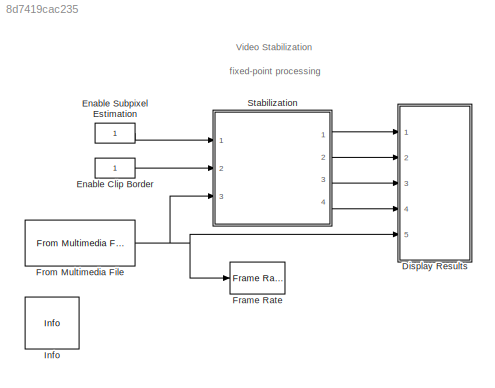
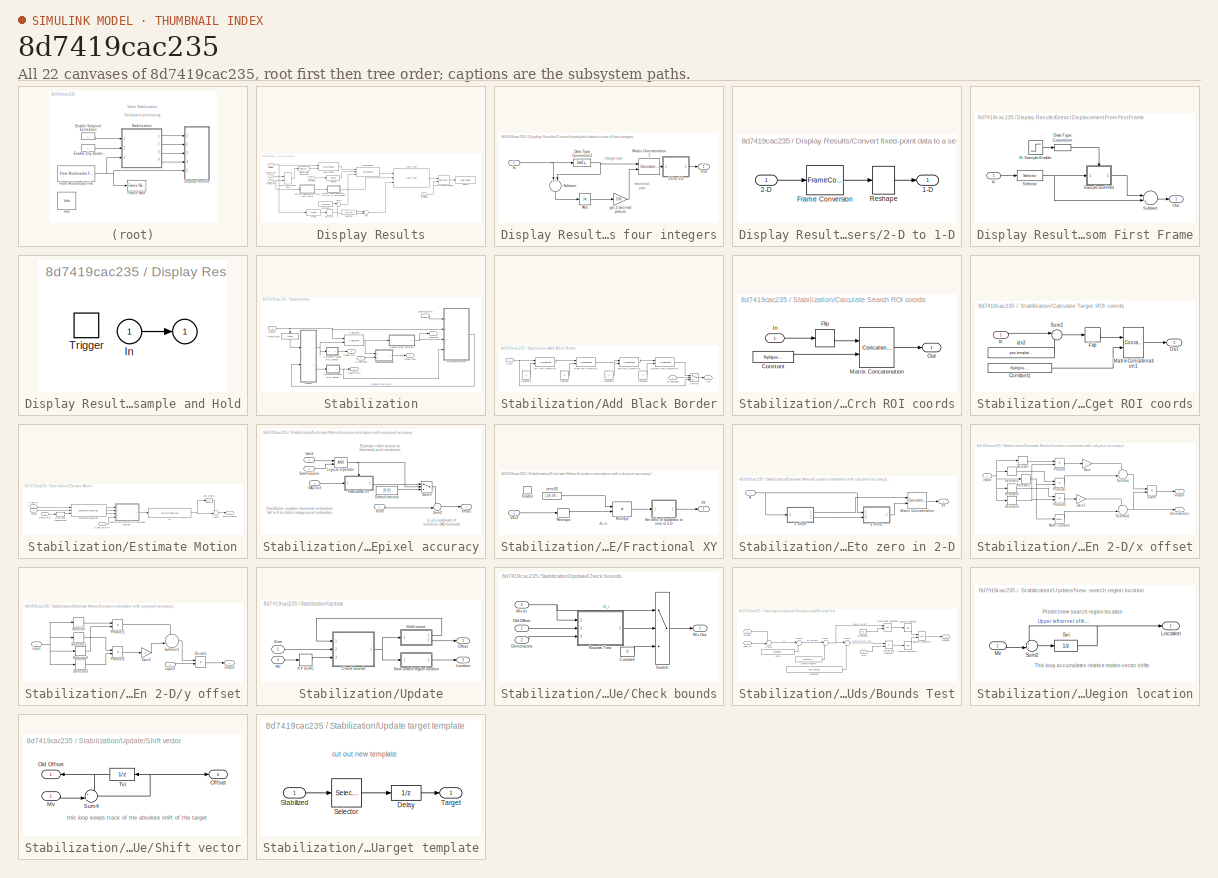
[diagram: thumbnail index - all 22 canvases of the model, root first then tree order]
MODEL slx_8d7419cac235
KIND model
CONFIG AbsTol = auto
CONFIG FixedStep = auto
CONFIG MaxStep = auto
CONFIG MinStep = auto
CONFIG RelTol = 1e-3
CONFIG SampleTimeConstraint = Unconstrained
CONFIG Solver = FixedStepDiscrete
CONFIG SolverMode = Auto
CONFIG SolverName = FixedStepDiscrete
CONFIG StartTime = 0.0
CONFIG StopTime = inf
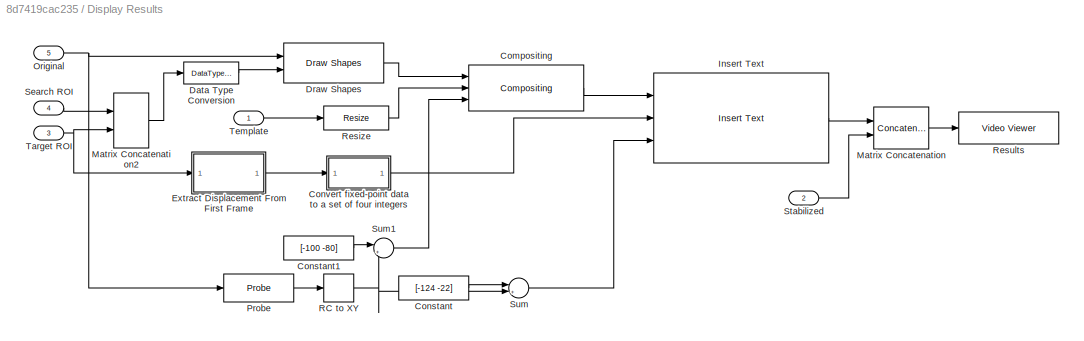
BLOCK [SubSystem] Display Results
  Ports = [5]
  RequestExecContextInheritance = off
  Variant = off
BLOCK [Reference] Display Results/Compositing  REF=visiontextngfix/Compositing
  Ports = [3, 1]
  SourceBlock = visiontextngfix/Compositing
  SourceType = Compositing
BLOCK [Constant] Display Results/Constant
  OutDataTypeStr = int16
  Value = [-124 -22]
BLOCK [Constant] Display Results/Constant1
  OutDataTypeStr = int16
  Value = [-100 -80]
BLOCK [SubSystem] Display Results/Convert fixed-point data to a set of four integers
  Ports = [1, 1]
  RequestExecContextInheritance = off
  Variant = off
BLOCK [SubSystem] Display Results/Convert fixed-point data to a set of four integers/2-D to 1-D
  Ports = [1, 1]
  RequestExecContextInheritance = off
  Variant = off
BLOCK [Outport] Display Results/Convert fixed-point data to a set of four integers/2-D to 1-D/1-D
  IconDisplay = Port number
BLOCK [Inport] Display Results/Convert fixed-point data to a set of four integers/2-D to 1-D/2-D
  IconDisplay = Port number
BLOCK [FrameConversion] Display Results/Convert fixed-point data to a set of four integers/2-D to 1-D/Frame Conversion
  InheritSamplingMode = off
  OutFrame = Sample-based
  Ports = [1, 1]
BLOCK [Reshape] Display Results/Convert fixed-point data to a set of four integers/2-D to 1-D/Reshape
  Ports = [1, 1]
BLOCK [Abs] Display Results/Convert fixed-point data to a set of four integers/Abs
  SaturateOnIntegerOverflow = off
BLOCK [DataTypeConversion] Display Results/Convert fixed-point data to a set of four integers/Data Type Conversion1
  OutDataTypeStr = int16
  SaturateOnIntegerOverflow = off
BLOCK [Inport] Display Results/Convert fixed-point data to a set of four integers/In
  IconDisplay = Port number
BLOCK [Concatenate] Display Results/Convert fixed-point data to a set of four integers/Matrix Concatenation1
  Mode = Multidimensional array
  Ports = [2, 1]
BLOCK [Outport] Display Results/Convert fixed-point data to a set of four integers/Out
  IconDisplay = Port number
BLOCK [Sum] Display Results/Convert fixed-point data to a set of four integers/Subtract
  InputSameDT = off
  Inputs = +-
  Ports = [2, 1]
  SaturateOnIntegerOverflow = off
BLOCK [Gain] Display Results/Convert fixed-point data to a set of four integers/get 2 decimal places
  Gain = 100
  OutDataTypeStr = fixdt(1,16,0)
  ParamDataTypeStr = Inherit: Inherit via internal rule
BLOCK [DataTypeConversion] Display Results/Data Type Conversion
  OutDataTypeStr = int16
  RndMeth = Floor
  SaturateOnIntegerOverflow = off
BLOCK [Reference] Display Results/Draw Shapes  REF=visiontextngfix/Draw Shapes
  Ports = [2, 1]
  SourceBlock = visiontextngfix/Draw Shapes
  SourceType = Draw Shapes
BLOCK [SubSystem] Display Results/Extract Displacement From First Frame
  Ports = [1, 1]
  RequestExecContextInheritance = off
  Variant = off
BLOCK [DataTypeConversion] Display Results/Extract Displacement From First Frame/Data Type Conversion
  OutDataTypeStr = boolean
  RndMeth = Floor
  SaturateOnIntegerOverflow = off
BLOCK [Inport] Display Results/Extract Displacement From First Frame/In
  IconDisplay = Port number
BLOCK [Step] Display Results/Extract Displacement From First Frame/N- Sample Enable
  Time = 0
BLOCK [Outport] Display Results/Extract Displacement From First Frame/Out
  IconDisplay = Port number
BLOCK [SubSystem] Display Results/Extract Displacement From First Frame/Sample and Hold
  Ports = [1, 1, 0, 1]
  RequestExecContextInheritance = off
  TreatAsAtomicUnit = on
  Variant = off
BLOCK [Outport] Display Results/Extract Displacement From First Frame/Sample and Hold/ 
  IconDisplay = Port number
  InitialOutput = initCond
BLOCK [Inport] Display Results/Extract Displacement From First Frame/Sample and Hold/In
  IconDisplay = Port number
BLOCK [TriggerPort] Display Results/Extract Displacement From First Frame/Sample and Hold/Trigger
  Ports = []
  ZeroCross = off
BLOCK [Selector] Display Results/Extract Displacement From First Frame/Selector
  IndexOptions = Index vector (dialog),Index vector (dialog)
  Indices = 1,[1 2]
  InputPortWidth = 3
  NumberOfDimensions = 2
  OutputSizes = 1,1
  Ports = [1, 1]
BLOCK [Sum] Display Results/Extract Displacement From First Frame/Subtract
  InputSameDT = off
  Inputs = -+
  OutDataTypeStr = Inherit: Inherit via internal rule
  Ports = [2, 1]
  SaturateOnIntegerOverflow = off
BLOCK [Reference] Display Results/Insert Text  REF=visiontextngfix/Insert Text
  Ports = [3, 1]
  SourceBlock = visiontextngfix/Insert Text
  SourceType = Insert Text
BLOCK [Concatenate] Display Results/Matrix Concatenation
  ConcatenateDimension = 2
  Mode = Multidimensional array
  Ports = [2, 1]
BLOCK [Concatenate] Display Results/Matrix Concatenation2
  Mode = Multidimensional array
  Ports = [2, 1]
BLOCK [Inport] Display Results/Original
  IconDisplay = Port number
  Port = 5
BLOCK [Probe] Display Results/Probe
  Ports = [1, 1]
  ProbeComplexSignal = off
  ProbeDimensionsDataType = int16
  ProbeSampleTime = off
  ProbeSignalDimensions = on
  ProbeWidth = off
BLOCK [Selector] Display Results/RC to XY
  IndexOptions = Index vector (dialog)
  Indices = [2 1]
  OutputSizes = 1
  Ports = [1, 1]
BLOCK [Reference] Display Results/Resize  REF=visiongeotforms/Resize
  Ports = [1, 1]
  SourceBlock = visiongeotforms/Resize
  SourceType = Resize
BLOCK [Reference] Display Results/Results  REF=visionsinks/Video Viewer
  Ports = [1]
  SourceBlock = visionsinks/Video Viewer
  SourceType = Video Viewer
  UserDataPersistent = on
BLOCK [Inport] Display Results/Search ROI
  IconDisplay = Port number
  Port = 4
BLOCK [Inport] Display Results/Stabilized
  IconDisplay = Port number
  Port = 2
BLOCK [Sum] Display Results/Sum
  IconShape = round
  InputSameDT = off
  Inputs = |++
  OutDataTypeStr = Inherit: Inherit via internal rule
  Ports = [2, 1]
  SaturateOnIntegerOverflow = off
BLOCK [Sum] Display Results/Sum1
  IconShape = round
  InputSameDT = off
  Inputs = |++
  OutDataTypeStr = Inherit: Inherit via internal rule
  Ports = [2, 1]
  SaturateOnIntegerOverflow = off
BLOCK [Inport] Display Results/Target ROI
  IconDisplay = Port number
  Port = 3
BLOCK [Inport] Display Results/Template
  IconDisplay = Port number
BLOCK [Constant] Enable Clip Border
  OutDataTypeStr = boolean
  VectorParams1D = off
BLOCK [Constant] Enable Subpixel Estimation
  OutDataTypeStr = boolean
  VectorParams1D = off
BLOCK [Reference] Frame Rate  REF=visionsinks/Frame Rate
Display
  Ports = [1]
  SourceBlock = visionsinks/Frame Rate\nDisplay
  SourceType = Frame Rate Display
BLOCK [Reference] From Multimedia File  REF=dspvision/From Multimedia File
  Ports = [0, 1]
  SourceBlock = dspvision/From Multimedia File
  SourceType = From Multimedia File
BLOCK [Reference] Info  REF=vipmisc/Info
  Ports = []
  SourceBlock = vipmisc/Info
  SourceType = Info
BLOCK [SubSystem] Stabilization
  Ports = [3, 4]
  RequestExecContextInheritance = off
  Variant = off
BLOCK [SubSystem] Stabilization/Add Black Border
  Ports = [2, 1]
  RequestExecContextInheritance = off
  Variant = off
BLOCK [Assignment] Stabilization/Add Black Border/Bottom Horiz Overwrite
  IndexOptions = Index vector (dialog),Assign all
  Indices = [240-(pos.search_border(2)+4):240],[320-(pos.search_border(2)+4):320]
  NumberOfDimensions = 2
  OutputSizes = 1,1
  Ports = [2, 1]
BLOCK [Inport] Stabilization/Add Black Border/ClipBorder
  IconDisplay = Port number
  Port = 2
BLOCK [Constant] Stabilization/Add Black Border/Constant
  OutDataTypeStr = uint8
  Value = 0
BLOCK [Constant] Stabilization/Add Black Border/Constant1
  OutDataTypeStr = uint8
  Value = 0
BLOCK [Constant] Stabilization/Add Black Border/Constant2
  OutDataTypeStr = uint8
  Value = 0
BLOCK [Constant] Stabilization/Add Black Border/Constant3
  OutDataTypeStr = uint8
  Value = 0
BLOCK [Assignment] Stabilization/Add Black Border/Left Vert Overwrite
  IndexOptions = Assign all,Index vector (dialog)
  Indices = 1:end,1:(pos.search_border(2)+4)
  NumberOfDimensions = 2
  OutputSizes = 1,1
  Ports = [2, 1]
BLOCK [Outport] Stabilization/Add Black Border/Out
  IconDisplay = Port number
BLOCK [Assignment] Stabilization/Add Black Border/Right vert Overwrite
  IndexOptions = Assign all,Index vector (dialog)
  Indices = 1:end,[320-(pos.search_border(2)+4):320]
  NumberOfDimensions = 2
  OutputSizes = 1,1
  Ports = [2, 1]
BLOCK [Switch] Stabilization/Add Black Border/Switch
  Criteria = u2 ~= 0
  InputSameDT = off
  SaturateOnIntegerOverflow = off
  ZeroCross = off
BLOCK [Assignment] Stabilization/Add Black Border/Top Horiz Overwrite
  IndexOptions = Index vector (dialog),Assign all
  Indices = [1:pos.search_border(1)+4],[320-(pos.search_border(2)+4):320]
  NumberOfDimensions = 2
  OutputSizes = 1,1
  Ports = [2, 1]
BLOCK [Inport] Stabilization/Add Black Border/VidIn
  IconDisplay = Port number
BLOCK [SubSystem] Stabilization/Calculate Search ROI coords
  Ports = [1, 1]
  RequestExecContextInheritance = off
  Variant = off
BLOCK [Constant] Stabilization/Calculate Search ROI coords/Constant
  OutDataTypeStr = fixdt(1,16,6)
  Value = fliplr(pos.template_size + 2*pos.search_border)
  VectorParams1D = off
BLOCK [Selector] Stabilization/Calculate Search ROI coords/Flip
  IndexOptions = Index vector (dialog),Index vector (dialog)
  Indices = 1,[2 1]
  NumberOfDimensions = 2
  OutputSizes = 1,1
  Ports = [1, 1]
BLOCK [Inport] Stabilization/Calculate Search ROI coords/In
  IconDisplay = Port number
BLOCK [Concatenate] Stabilization/Calculate Search ROI coords/Matrix Concatenation
  ConcatenateDimension = 2
  Mode = Multidimensional array
  Ports = [2, 1]
BLOCK [Outport] Stabilization/Calculate Search ROI coords/Out
  IconDisplay = Port number
BLOCK [SubSystem] Stabilization/Calculate Target ROI coords
  Ports = [1, 1]
  RequestExecContextInheritance = off
  Variant = off
BLOCK [Constant] Stabilization/Calculate Target ROI coords/Constant1
  OutDataTypeStr = Inherit: Inherit via back propagation
  Value = fliplr(pos.template_size )
  VectorParams1D = off
BLOCK [Selector] Stabilization/Calculate Target ROI coords/Flip
  IndexOptions = Index vector (dialog),Index vector (dialog)
  Indices = 1,[2 1]
  NumberOfDimensions = 2
  OutputSizes = 1,1
  Ports = [1, 1]
BLOCK [Inport] Stabilization/Calculate Target ROI coords/In
  IconDisplay = Port number
BLOCK [Concatenate] Stabilization/Calculate Target ROI coords/Matrix Concatenation1
  ConcatenateDimension = 2
  Mode = Multidimensional array
  Ports = [2, 1]
BLOCK [Outport] Stabilization/Calculate Target ROI coords/Out
  IconDisplay = Port number
BLOCK [Sum] Stabilization/Calculate Target ROI coords/Sum2
  IconShape = round
  InputSameDT = off
  Inputs = |-+
  OutDataTypeStr = Inherit: Inherit via internal rule
  Ports = [2, 1]
  SaturateOnIntegerOverflow = off
BLOCK [Constant] Stabilization/Calculate Target ROI coords/idx3
  OutDataTypeStr = fixdt(1,16,6)
  Value = pos.template_orig
  VectorParams1D = off
BLOCK [Inport] Stabilization/ClipBorder
  IconDisplay = Port number
  Port = 2
BLOCK [SubSystem] Stabilization/Estimate Motion
  Ports = [4, 1]
  RequestExecContextInheritance = off
  Variant = off
BLOCK [DataTypeConversion] Stabilization/Estimate Motion/Data Type Conversion1
  OutDataTypeStr = int32
  SaturateOnIntegerOverflow = off
BLOCK [InitialCondition] Stabilization/Estimate Motion/IC
  Value = fliplr(pos.template_center_pos)
BLOCK [SubSystem] Stabilization/Estimate Motion/Location estimation with sub-pixel accuracy
  Ports = [4, 1]
  RequestExecContextInheritance = off
  Variant = off
BLOCK [Constant] Stabilization/Estimate Motion/Location estimation with sub-pixel accuracy/Default fraction
  OutDataTypeStr = fixdt(1,8,6)
  Value = [0 0]
  VectorParams1D = off
BLOCK [SubSystem] Stabilization/Estimate Motion/Location estimation with sub-pixel accuracy/Fractional XY
  Ports = [1, 1, 1]
  RequestExecContextInheritance = off
  TreatAsAtomicUnit = on
  Variant = off
BLOCK [EnablePort] Stabilization/Estimate Motion/Location estimation with sub-pixel accuracy/Fractional XY/Enable
  Ports = []
  PropagateVarSize = During execution
  StatesWhenEnabling = reset
  ZeroCross = off
BLOCK [Product] Stabilization/Estimate Motion/Location estimation with sub-pixel accuracy/Fractional XY/Multiply
  InputSameDT = off
  Inputs = **
  Multiplication = Matrix(*)
  OutDataTypeStr = fixdt(1,16,-1)
  Ports = [2, 1]
  RndMeth = Floor
  SaturateOnIntegerOverflow = off
BLOCK [Reshape] Stabilization/Estimate Motion/Location estimation with sub-pixel accuracy/Fractional XY/Reshape
  OutputDimensionality = Column vector (2-D)
  Ports = [1, 1]
BLOCK [SubSystem] Stabilization/Estimate Motion/Location estimation with sub-pixel accuracy/Fractional XY/Set deriv of quadratic to zero in 2-D
  Ports = [1, 1]
  RequestExecContextInheritance = off
  Variant = off
BLOCK [Inport] Stabilization/Estimate Motion/Location estimation with sub-pixel accuracy/Fractional XY/Set deriv of quadratic to zero in 2-D/A
  IconDisplay = Port number
BLOCK [Concatenate] Stabilization/Estimate Motion/Location estimation with sub-pixel accuracy/Fractional XY/Set deriv of quadratic to zero in 2-D/Matrix Concatenation
  ConcatenateDimension = 2
  Mode = Multidimensional array
  Ports = [2, 1]
BLOCK [Outport] Stabilization/Estimate Motion/Location estimation with sub-pixel accuracy/Fractional XY/Set deriv of quadratic to zero in 2-D/XY
  IconDisplay = Port number
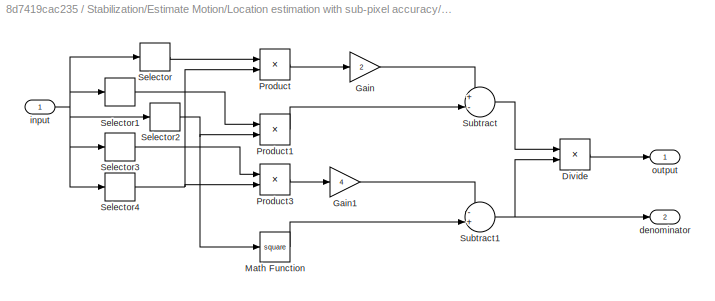
BLOCK [SubSystem] Stabilization/Estimate Motion/Location estimation with sub-pixel accuracy/Fractional XY/Set deriv of quadratic to zero in 2-D/x offset
  Ports = [1, 2]
  RequestExecContextInheritance = off
  Variant = off
BLOCK [Product] Stabilization/Estimate Motion/Location estimation with sub-pixel accuracy/Fractional XY/Set deriv of quadratic to zero in 2-D/x offset/Divide
  InputSameDT = off
  Inputs = */
  OutDataTypeStr = fixdt(1,8,6)
  Ports = [2, 1]
  RndMeth = Floor
BLOCK [Gain] Stabilization/Estimate Motion/Location estimation with sub-pixel accuracy/Fractional XY/Set deriv of quadratic to zero in 2-D/x offset/Gain
  Gain = 2
  ParamDataTypeStr = Inherit: Inherit via internal rule
  SaturateOnIntegerOverflow = off
BLOCK [Gain] Stabilization/Estimate Motion/Location estimation with sub-pixel accuracy/Fractional XY/Set deriv of quadratic to zero in 2-D/x offset/Gain1
  Gain = 4
  ParamDataTypeStr = Inherit: Inherit via internal rule
  SaturateOnIntegerOverflow = off
BLOCK [Math] Stabilization/Estimate Motion/Location estimation with sub-pixel accuracy/Fractional XY/Set deriv of quadratic to zero in 2-D/x offset/Math Function
  Operator = square
  OutDataTypeStr = Inherit: Inherit via internal rule
  Ports = [1, 1]
BLOCK [Product] Stabilization/Estimate Motion/Location estimation with sub-pixel accuracy/Fractional XY/Set deriv of quadratic to zero in 2-D/x offset/Product
  InputSameDT = off
  OutDataTypeStr = Inherit: Inherit via internal rule
  Ports = [2, 1]
  SaturateOnIntegerOverflow = off
BLOCK [Product] Stabilization/Estimate Motion/Location estimation with sub-pixel accuracy/Fractional XY/Set deriv of quadratic to zero in 2-D/x offset/Product1
  InputSameDT = off
  OutDataTypeStr = Inherit: Inherit via internal rule
  Ports = [2, 1]
  SaturateOnIntegerOverflow = off
BLOCK [Product] Stabilization/Estimate Motion/Location estimation with sub-pixel accuracy/Fractional XY/Set deriv of quadratic to zero in 2-D/x offset/Product3
  InputSameDT = off
  OutDataTypeStr = Inherit: Inherit via internal rule
  Ports = [2, 1]
  SaturateOnIntegerOverflow = off
BLOCK [Selector] Stabilization/Estimate Motion/Location estimation with sub-pixel accuracy/Fractional XY/Set deriv of quadratic to zero in 2-D/x offset/Selector
  IndexMode = Zero-based
  IndexOptions = Index vector (dialog)
  Indices = (1)
  OutputSizes = 1
  Ports = [1, 1]
BLOCK [Selector] Stabilization/Estimate Motion/Location estimation with sub-pixel accuracy/Fractional XY/Set deriv of quadratic to zero in 2-D/x offset/Selector1
  IndexMode = Zero-based
  IndexOptions = Index vector (dialog)
  Indices = (2)
  OutputSizes = 1
  Ports = [1, 1]
BLOCK [Selector] Stabilization/Estimate Motion/Location estimation with sub-pixel accuracy/Fractional XY/Set deriv of quadratic to zero in 2-D/x offset/Selector2
  IndexMode = Zero-based
  IndexOptions = Index vector (dialog)
  Indices = (3)
  OutputSizes = 1
  Ports = [1, 1]
BLOCK [Selector] Stabilization/Estimate Motion/Location estimation with sub-pixel accuracy/Fractional XY/Set deriv of quadratic to zero in 2-D/x offset/Selector3
  IndexMode = Zero-based
  IndexOptions = Index vector (dialog)
  Indices = (4)
  OutputSizes = 1
  Ports = [1, 1]
BLOCK [Selector] Stabilization/Estimate Motion/Location estimation with sub-pixel accuracy/Fractional XY/Set deriv of quadratic to zero in 2-D/x offset/Selector4
  IndexMode = Zero-based
  IndexOptions = Index vector (dialog)
  Indices = (5)
  OutputSizes = 1
  Ports = [1, 1]
BLOCK [Sum] Stabilization/Estimate Motion/Location estimation with sub-pixel accuracy/Fractional XY/Set deriv of quadratic to zero in 2-D/x offset/Subtract
  IconShape = round
  InputSameDT = off
  Inputs = +-
  Ports = [2, 1]
  SaturateOnIntegerOverflow = off
BLOCK [Sum] Stabilization/Estimate Motion/Location estimation with sub-pixel accuracy/Fractional XY/Set deriv of quadratic to zero in 2-D/x offset/Subtract1
  IconShape = round
  InputSameDT = off
  Inputs = -+
  Ports = [2, 1]
  SaturateOnIntegerOverflow = off
BLOCK [Outport] Stabilization/Estimate Motion/Location estimation with sub-pixel accuracy/Fractional XY/Set deriv of quadratic to zero in 2-D/x offset/denominator
  IconDisplay = Port number
  Port = 2
BLOCK [Inport] Stabilization/Estimate Motion/Location estimation with sub-pixel accuracy/Fractional XY/Set deriv of quadratic to zero in 2-D/x offset/input
  IconDisplay = Port number
BLOCK [Outport] Stabilization/Estimate Motion/Location estimation with sub-pixel accuracy/Fractional XY/Set deriv of quadratic to zero in 2-D/x offset/output
  IconDisplay = Port number
BLOCK [SubSystem] Stabilization/Estimate Motion/Location estimation with sub-pixel accuracy/Fractional XY/Set deriv of quadratic to zero in 2-D/y offset
  Ports = [2, 1]
  RequestExecContextInheritance = off
  Variant = off
BLOCK [Product] Stabilization/Estimate Motion/Location estimation with sub-pixel accuracy/Fractional XY/Set deriv of quadratic to zero in 2-D/y offset/Divide1
  InputSameDT = off
  Inputs = */
  OutDataTypeStr = fixdt(1,8,6)
  Ports = [2, 1]
  RndMeth = Floor
BLOCK [Gain] Stabilization/Estimate Motion/Location estimation with sub-pixel accuracy/Fractional XY/Set deriv of quadratic to zero in 2-D/y offset/Gain2
  Gain = 2
  ParamDataTypeStr = Inherit: Inherit via internal rule
  SaturateOnIntegerOverflow = off
BLOCK [Product] Stabilization/Estimate Motion/Location estimation with sub-pixel accuracy/Fractional XY/Set deriv of quadratic to zero in 2-D/y offset/Product1
  InputSameDT = off
  OutDataTypeStr = Inherit: Inherit via internal rule
  Ports = [2, 1]
  SaturateOnIntegerOverflow = off
BLOCK [Product] Stabilization/Estimate Motion/Location estimation with sub-pixel accuracy/Fractional XY/Set deriv of quadratic to zero in 2-D/y offset/Product2
  InputSameDT = off
  OutDataTypeStr = Inherit: Inherit via internal rule
  Ports = [2, 1]
  SaturateOnIntegerOverflow = off
BLOCK [Selector] Stabilization/Estimate Motion/Location estimation with sub-pixel accuracy/Fractional XY/Set deriv of quadratic to zero in 2-D/y offset/Selector
  IndexMode = Zero-based
  IndexOptions = Index vector (dialog)
  Indices = (1)
  OutputSizes = 1
  Ports = [1, 1]
BLOCK [Selector] Stabilization/Estimate Motion/Location estimation with sub-pixel accuracy/Fractional XY/Set deriv of quadratic to zero in 2-D/y offset/Selector1
  IndexMode = Zero-based
  IndexOptions = Index vector (dialog)
  Indices = (2)
  OutputSizes = 1
  Ports = [1, 1]
BLOCK [Selector] Stabilization/Estimate Motion/Location estimation with sub-pixel accuracy/Fractional XY/Set deriv of quadratic to zero in 2-D/y offset/Selector2
  IndexMode = Zero-based
  IndexOptions = Index vector (dialog)
  Indices = (3)
  OutputSizes = 1
  Ports = [1, 1]
BLOCK [Selector] Stabilization/Estimate Motion/Location estimation with sub-pixel accuracy/Fractional XY/Set deriv of quadratic to zero in 2-D/y offset/Selector3
  IndexMode = Zero-based
  IndexOptions = Index vector (dialog)
  Indices = (4)
  OutputSizes = 1
  Ports = [1, 1]
BLOCK [Sum] Stabilization/Estimate Motion/Location estimation with sub-pixel accuracy/Fractional XY/Set deriv of quadratic to zero in 2-D/y offset/Subtract1
  IconShape = round
  InputSameDT = off
  Inputs = -+
  OutDataTypeStr = Inherit: Inherit via internal rule
  Ports = [2, 1]
  SaturateOnIntegerOverflow = off
BLOCK [Inport] Stabilization/Estimate Motion/Location estimation with sub-pixel accuracy/Fractional XY/Set deriv of quadratic to zero in 2-D/y offset/input
  IconDisplay = Port number
BLOCK [Inport] Stabilization/Estimate Motion/Location estimation with sub-pixel accuracy/Fractional XY/Set deriv of quadratic to zero in 2-D/y offset/input1
  IconDisplay = Port number
  Port = 2
BLOCK [Outport] Stabilization/Estimate Motion/Location estimation with sub-pixel accuracy/Fractional XY/Set deriv of quadratic to zero in 2-D/y offset/output
  IconDisplay = Port number
BLOCK [Inport] Stabilization/Estimate Motion/Location estimation with sub-pixel accuracy/Fractional XY/V3x3
  IconDisplay = Port number
BLOCK [Outport] Stabilization/Estimate Motion/Location estimation with sub-pixel accuracy/Fractional XY/XY
  IconDisplay = Port number
BLOCK [Constant] Stabilization/Estimate Motion/Location estimation with sub-pixel accuracy/Fractional XY/pinv(X)
  OutDataTypeStr = fixdt(1,16)
  Value = [-4 8 -4 8 20 8 -4 8 -4;-6 -6 -6 0 0 0 6 6 6;-6 0 6 -6 0 6 -6 0 6;9 0 -9 0 0 0 -9 0 9;6 6 6 -12 -12 -12 6 6 6;6 -12 6 6 -12 6 6 -12 6]/36
  VectorParams1D = off
BLOCK [Logic] Stabilization/Estimate Motion/Location estimation with sub-pixel accuracy/Logical Operator
  AllPortsSameDT = off
  OutDataTypeStr = boolean
  Ports = [2, 1]
BLOCK [Inport] Stabilization/Estimate Motion/Location estimation with sub-pixel accuracy/SAD 3x3
  IconDisplay = Port number
  Port = 2
BLOCK [Inport] Stabilization/Estimate Motion/Location estimation with sub-pixel accuracy/SubPixEstim
  IconDisplay = Port number
  Port = 4
BLOCK [Sum] Stabilization/Estimate Motion/Location estimation with sub-pixel accuracy/Sum2
  IconShape = round
  InputSameDT = off
  Inputs = ++|
  OutDataTypeStr = fixdt(1,16,6)
  Ports = [2, 1]
  SaturateOnIntegerOverflow = off
BLOCK [Switch] Stabilization/Estimate Motion/Location estimation with sub-pixel accuracy/Switch
  Criteria = u2 ~= 0
  InputSameDT = off
  SaturateOnIntegerOverflow = off
BLOCK [Inport] Stabilization/Estimate Motion/Location estimation with sub-pixel accuracy/Valid
  IconDisplay = Port number
  Port = 3
BLOCK [Outport] Stabilization/Estimate Motion/Location estimation with sub-pixel accuracy/XYfrac
  IconDisplay = Port number
BLOCK [Inport] Stabilization/Estimate Motion/Location estimation with sub-pixel accuracy/XYint
  IconDisplay = Port number
BLOCK [Outport] Stabilization/Estimate Motion/Motion vector
  IconDisplay = Port number
BLOCK [Inport] Stabilization/Estimate Motion/Search ROI
  IconDisplay = Port number
  Port = 4
BLOCK [Inport] Stabilization/Estimate Motion/SubPixEstim
  IconDisplay = Port number
BLOCK [Sum] Stabilization/Estimate Motion/Sum3
  IconShape = round
  InputSameDT = off
  Inputs = -+|
  OutDataTypeStr = fixdt(1,16,6)
  Ports = [2, 1]
  SaturateOnIntegerOverflow = off
BLOCK [Inport] Stabilization/Estimate Motion/Target
  IconDisplay = Port number
  Port = 3
BLOCK [Reference] Stabilization/Estimate Motion/Template Matching  REF=visionanalysis/Template Matching
  Ports = [3, 3]
  SourceBlock = visionanalysis/Template Matching
  SourceType = Template Matching
BLOCK [Inport] Stabilization/Estimate Motion/Video In
  IconDisplay = Port number
  Port = 2
BLOCK [UnitDelay] Stabilization/Estimate Motion/last match
  InitialCondition = fliplr(pos.template_center_pos)
  SampleTime = -1
BLOCK [Probe] Stabilization/Frame size
  Ports = [1, 1]
  ProbeComplexSignal = off
  ProbeDimensionsDataType = int16
  ProbeSampleTime = off
  ProbeSignalDimensions = on
  ProbeWidth = off
BLOCK [Outport] Stabilization/Search ROI
  IconDisplay = Port number
  Port = 4
BLOCK [Inport] Stabilization/Source
  IconDisplay = Port number
  Port = 3
BLOCK [Outport] Stabilization/Stabilized
  IconDisplay = Port number
  Port = 2
BLOCK [Inport] Stabilization/SubPixEstim
  IconDisplay = Port number
BLOCK [Outport] Stabilization/Target ROI
  IconDisplay = Port number
  Port = 3
BLOCK [Outport] Stabilization/Template
  IconDisplay = Port number
BLOCK [Reference] Stabilization/Translate  REF=visiongeotforms/Translate
  Ports = [2, 1]
  SourceBlock = visiongeotforms/Translate
  SourceType = Translate
BLOCK [SubSystem] Stabilization/Update
  Ports = [2, 2]
  RequestExecContextInheritance = off
  Variant = off
BLOCK [SubSystem] Stabilization/Update target template
  Ports = [1, 1]
  RequestExecContextInheritance = off
  Variant = off
BLOCK [UnitDelay] Stabilization/Update target template/Delay
  SampleTime = -1
BLOCK [Selector] Stabilization/Update target template/Selector
  IndexOptions = Index vector (dialog),Index vector (dialog)
  Indices = pos.template_orig(1)-1 : pos.template_orig(1)+pos.template_size(1)-2,pos.template_orig(2)-1 : pos.template_orig(2)+pos.template_size(2)-2
  InputPortWidth = 3
  NumberOfDimensions = 2
  OutputSizes = 1,1
  Ports = [1, 1]
BLOCK [Inport] Stabilization/Update target template/Stabilized
  IconDisplay = Port number
BLOCK [Outport] Stabilization/Update target template/Target
  IconDisplay = Port number
BLOCK [SubSystem] Stabilization/Update/Check bounds
  Ports = [3, 1]
  RequestExecContextInheritance = off
  Variant = off
BLOCK [SubSystem] Stabilization/Update/Check bounds/Bounds Test
  Ports = [3, 1]
  RequestExecContextInheritance = off
  Variant = off
BLOCK [Constant] Stabilization/Update/Check bounds/Bounds Test/Constant1
  OutDataTypeStr = int16
  Value = (pos.template_size + 2*pos.search_border)'
BLOCK [Constant] Stabilization/Update/Check bounds/Bounds Test/Constant2
  OutDataTypeStr = int16
  Value = [1 1]
BLOCK [Logic] Stabilization/Update/Check bounds/Bounds Test/Logical Operator
  AllPortsSameDT = off
  Inputs = 1
  OutDataTypeStr = boolean
  Ports = [1, 1]
BLOCK [Logic] Stabilization/Update/Check bounds/Bounds Test/Logical Operator1
  AllPortsSameDT = off
  Inputs = 1
  OutDataTypeStr = boolean
  Ports = [1, 1]
BLOCK [Logic] Stabilization/Update/Check bounds/Bounds Test/Logical Operator2
  AllPortsSameDT = off
  OutDataTypeStr = boolean
  Ports = [2, 1]
BLOCK [RelationalOperator] Stabilization/Update/Check bounds/Bounds Test/Relational Operator
  InputSameDT = off
  OutDataTypeStr = boolean
  Ports = [2, 1]
BLOCK [RelationalOperator] Stabilization/Update/Check bounds/Bounds Test/Relational Operator1
  InputSameDT = off
  Operator = <=
  OutDataTypeStr = boolean
  Ports = [2, 1]
BLOCK [Constant] Stabilization/Update/Check bounds/Bounds Test/Search Region
  OutDataTypeStr = int16
  Value = pos.search_border
BLOCK [Sum] Stabilization/Update/Check bounds/Bounds Test/Sum1
  IconShape = round
  InputSameDT = off
  Inputs = |+-
  Ports = [2, 1]
  SaturateOnIntegerOverflow = off
BLOCK [Sum] Stabilization/Update/Check bounds/Bounds Test/Sum2
  IconShape = round
  InputSameDT = off
  Inputs = |-+
  OutDataTypeStr = int16
  Ports = [2, 1]
  SaturateOnIntegerOverflow = off
BLOCK [Sum] Stabilization/Update/Check bounds/Bounds Test/Sum3
  IconShape = round
  InputSameDT = off
  Inputs = |++
  Ports = [2, 1]
  SaturateOnIntegerOverflow = off
BLOCK [Sum] Stabilization/Update/Check bounds/Bounds Test/Sum4
  IconShape = round
  InputSameDT = off
  Inputs = +-|
  OutDataTypeStr = Inherit: Inherit via internal rule
  Ports = [2, 1]
  SaturateOnIntegerOverflow = off
BLOCK [Inport] Stabilization/Update/Check bounds/Bounds Test/dim
  IconDisplay = Port number
  Port = 3
BLOCK [Constant] Stabilization/Update/Check bounds/Bounds Test/idx3
  OutDataTypeStr = int16
  Value = pos.template_orig
BLOCK [Outport] Stabilization/Update/Check bounds/Bounds Test/inbounds
  IconDisplay = Port number
BLOCK [Inport] Stabilization/Update/Check bounds/Bounds Test/new_rel
  IconDisplay = Port number
BLOCK [Inport] Stabilization/Update/Check bounds/Bounds Test/old_abs
  IconDisplay = Port number
  Port = 2
BLOCK [Constant] Stabilization/Update/Check bounds/Constant
  OutDataTypeStr = fixdt(1,16,6)
  Value = 0
BLOCK [Inport] Stabilization/Update/Check bounds/Dimensions
  IconDisplay = Port number
  Port = 2
BLOCK [Inport] Stabilization/Update/Check bounds/Mv In
  IconDisplay = Port number
  Port = 3
BLOCK [Outport] Stabilization/Update/Check bounds/Mv Out
  IconDisplay = Port number
BLOCK [Inport] Stabilization/Update/Check bounds/Old Offset
  IconDisplay = Port number
BLOCK [Switch] Stabilization/Update/Check bounds/Switch
  Criteria = u2 ~= 0
  InputSameDT = off
  SaturateOnIntegerOverflow = off
  ZeroCross = off
BLOCK [Outport] Stabilization/Update/Location
  IconDisplay = Port number
  Port = 2
BLOCK [Inport] Stabilization/Update/Mv
  IconDisplay = Port number
  Port = 2
BLOCK [SubSystem] Stabilization/Update/New search region location
  Ports = [1, 1]
  RequestExecContextInheritance = off
  Variant = off
BLOCK [Outport] Stabilization/Update/New search region location/Location
  IconDisplay = Port number
BLOCK [Inport] Stabilization/Update/New search region location/Mv
  IconDisplay = Port number
BLOCK [Sum] Stabilization/Update/New search region location/Sum2
  IconShape = round
  InputSameDT = off
  Inputs = ++|
  LockScale = on
  OutDataTypeStr = Inherit: Inherit via internal rule
  Ports = [2, 1]
  RndMeth = Nearest
  SaturateOnIntegerOverflow = off
BLOCK [UnitDelay] Stabilization/Update/New search region location/Svi
  InitialCondition = pos.template_orig - pos.search_border - 1
  SampleTime = -1
BLOCK [Outport] Stabilization/Update/Offset
  IconDisplay = Port number
BLOCK [SubSystem] Stabilization/Update/Shift vector
  Ports = [1, 2]
  RequestExecContextInheritance = off
  Variant = off
BLOCK [Inport] Stabilization/Update/Shift vector/Mv
  IconDisplay = Port number
BLOCK [Outport] Stabilization/Update/Shift vector/Offset
  IconDisplay = Port number
  Port = 2
BLOCK [Outport] Stabilization/Update/Shift vector/Old Offset
  IconDisplay = Port number
BLOCK [Sum] Stabilization/Update/Shift vector/Sum4
  IconShape = round
  InputSameDT = off
  Inputs = +-|
  OutDataTypeStr = fixdt(1,16,6)
  Ports = [2, 1]
  SaturateOnIntegerOverflow = off
BLOCK [UnitDelay] Stabilization/Update/Shift vector/Tvi
  SampleTime = -1
BLOCK [Inport] Stabilization/Update/Size
  IconDisplay = Port number
BLOCK [Selector] Stabilization/Update/XY to RC
  IndexOptions = Index vector (dialog),Index vector (dialog)
  Indices = 1,[2 1]
  NumberOfDimensions = 2
  OutputSizes = 1,1
  Ports = [1, 1]
ANNOTATION (root): Video Stabilization
ANNOTATION (root): fixed-point processing
ANNOTATION Display Results/Convert fixed-point data to a set of four integers: fractional part
ANNOTATION Display Results/Convert fixed-point data to a set of four integers: integer part
ANNOTATION Stabilization/Estimate Motion/Location estimation with sub-pixel accuracy: Estimate video motion to fractional pixel resolution
ANNOTATION Stabilization/Estimate Motion/Location estimation with sub-pixel accuracy: FractEstim: enables fractional estimation Set to 0 to utilize integer pixel estimates
ANNOTATION Stabilization/Estimate Motion/Location estimation with sub-pixel accuracy: [x y] coordinate of minimum SAD estimate
ANNOTATION Stabilization/Estimate Motion/Location estimation with sub-pixel accuracy/Fractional XY: Ax=b
ANNOTATION Stabilization/Update target template: cut out new template
ANNOTATION Stabilization/Update/New search region location: Predict new search region location
ANNOTATION Stabilization/Update/New search region location: This loop accumulates relative motion vector shifts
ANNOTATION Stabilization/Update/Shift vector: this loop keeps track of the absolute shift of the target
LINE Display Results/Compositing:1 -> Display Results/Insert Text:1
LINE Display Results/Constant1:1 -> Display Results/Sum1:1
LINE Display Results/Constant:1 -> Display Results/Sum:1
LINE Display Results/Convert fixed-point data to a set of four integers/2-D to 1-D/2-D:1 -> Display Results/Convert fixed-point data to a set of four integers/2-D to 1-D/Frame Conversion:1
LINE Display Results/Convert fixed-point data to a set of four integers/2-D to 1-D/Frame Conversion:1 -> Display Results/Convert fixed-point data to a set of four integers/2-D to 1-D/Reshape:1
LINE Display Results/Convert fixed-point data to a set of four integers/2-D to 1-D/Reshape:1 -> Display Results/Convert fixed-point data to a set of four integers/2-D to 1-D/1-D:1
LINE Display Results/Convert fixed-point data to a set of four integers/2-D to 1-D:1 -> Display Results/Convert fixed-point data to a set of four integers/Out:1
LINE Display Results/Convert fixed-point data to a set of four integers/Abs:1 -> Display Results/Convert fixed-point data to a set of four integers/get 2 decimal places:1
NET Display Results/Convert fixed-point data to a set of four integers/Data Type Conversion1:1 -> Display Results/Convert fixed-point data to a set of four integers/Matrix Concatenation1:1, Display Results/Convert fixed-point data to a set of four integers/Subtract:2
NET Display Results/Convert fixed-point data to a set of four integers/In:1 -> Display Results/Convert fixed-point data to a set of four integers/Data Type Conversion1:1, Display Results/Convert fixed-point data to a set of four integers/Subtract:1
LINE Display Results/Convert fixed-point data to a set of four integers/Matrix Concatenation1:1 -> Display Results/Convert fixed-point data to a set of four integers/2-D to 1-D:1
LINE Display Results/Convert fixed-point data to a set of four integers/Subtract:1 -> Display Results/Convert fixed-point data to a set of four integers/Abs:1
LINE Display Results/Convert fixed-point data to a set of four integers/get 2 decimal places:1 -> Display Results/Convert fixed-point data to a set of four integers/Matrix Concatenation1:2
LINE Display Results/Convert fixed-point data to a set of four integers:1 -> Display Results/Insert Text:2
LINE Display Results/Data Type Conversion:1 -> Display Results/Draw Shapes:2
LINE Display Results/Draw Shapes:1 -> Display Results/Compositing:1
LINE Display Results/Extract Displacement From First Frame/Data Type Conversion:1 -> Display Results/Extract Displacement From First Frame/Sample and Hold:trigger
LINE Display Results/Extract Displacement From First Frame/In:1 -> Display Results/Extract Displacement From First Frame/Selector:1
LINE Display Results/Extract Displacement From First Frame/N- Sample Enable:1 -> Display Results/Extract Displacement From First Frame/Data Type Conversion:1
LINE Display Results/Extract Displacement From First Frame/Sample and Hold/In:1 -> Display Results/Extract Displacement From First Frame/Sample and Hold/ :1
LINE Display Results/Extract Displacement From First Frame/Sample and Hold:1 -> Display Results/Extract Displacement From First Frame/Subtract:1
NET Display Results/Extract Displacement From First Frame/Selector:1 -> Display Results/Extract Displacement From First Frame/Sample and Hold:1, Display Results/Extract Displacement From First Frame/Subtract:2
LINE Display Results/Extract Displacement From First Frame/Subtract:1 -> Display Results/Extract Displacement From First Frame/Out:1
LINE Display Results/Extract Displacement From First Frame:1 -> Display Results/Convert fixed-point data to a set of four integers:1
LINE Display Results/Insert Text:1 -> Display Results/Matrix Concatenation:1
LINE Display Results/Matrix Concatenation2:1 -> Display Results/Data Type Conversion:1
LINE Display Results/Matrix Concatenation:1 -> Display Results/Results:1
NET Display Results/Original:1 -> Display Results/Draw Shapes:1, Display Results/Probe:1
LINE Display Results/Probe:1 -> Display Results/RC to XY:1
NET Display Results/RC to XY:1 -> Display Results/Sum1:2, Display Results/Sum:2
LINE Display Results/Resize:1 -> Display Results/Compositing:2
LINE Display Results/Search ROI:1 -> Display Results/Matrix Concatenation2:1
LINE Display Results/Stabilized:1 -> Display Results/Matrix Concatenation:2
LINE Display Results/Sum1:1 -> Display Results/Compositing:3
LINE Display Results/Sum:1 -> Display Results/Insert Text:3
NET Display Results/Target ROI:1 -> Display Results/Extract Displacement From First Frame:1, Display Results/Matrix Concatenation2:2
LINE Display Results/Template:1 -> Display Results/Resize:1
LINE Enable Clip Border:1 -> Stabilization:2
LINE Enable Subpixel Estimation:1 -> Stabilization:1
NET From Multimedia File:1 -> Display Results:5, Frame Rate:1, Stabilization:3
LINE Stabilization/Add Black Border/Bottom Horiz Overwrite:1 -> Stabilization/Add Black Border/Switch:1
LINE Stabilization/Add Black Border/ClipBorder:1 -> Stabilization/Add Black Border/Switch:2
LINE Stabilization/Add Black Border/Constant1:1 -> Stabilization/Add Black Border/Left Vert Overwrite:2
LINE Stabilization/Add Black Border/Constant2:1 -> Stabilization/Add Black Border/Top Horiz Overwrite:2
LINE Stabilization/Add Black Border/Constant3:1 -> Stabilization/Add Black Border/Bottom Horiz Overwrite:2
LINE Stabilization/Add Black Border/Constant:1 -> Stabilization/Add Black Border/Right vert Overwrite:2
LINE Stabilization/Add Black Border/Left Vert Overwrite:1 -> Stabilization/Add Black Border/Right vert Overwrite:1
LINE Stabilization/Add Black Border/Right vert Overwrite:1 -> Stabilization/Add Black Border/Top Horiz Overwrite:1
LINE Stabilization/Add Black Border/Switch:1 -> Stabilization/Add Black Border/Out:1
LINE Stabilization/Add Black Border/Top Horiz Overwrite:1 -> Stabilization/Add Black Border/Bottom Horiz Overwrite:1
NET Stabilization/Add Black Border/VidIn:1 -> Stabilization/Add Black Border/Left Vert Overwrite:1, Stabilization/Add Black Border/Switch:3
LINE Stabilization/Add Black Border:1 -> Stabilization/Stabilized:1
LINE Stabilization/Calculate Search ROI coords/Constant:1 -> Stabilization/Calculate Search ROI coords/Matrix Concatenation:2
LINE Stabilization/Calculate Search ROI coords/Flip:1 -> Stabilization/Calculate Search ROI coords/Matrix Concatenation:1
LINE Stabilization/Calculate Search ROI coords/In:1 -> Stabilization/Calculate Search ROI coords/Flip:1
LINE Stabilization/Calculate Search ROI coords/Matrix Concatenation:1 -> Stabilization/Calculate Search ROI coords/Out:1
NET Stabilization/Calculate Search ROI coords:1 -> Stabilization/Estimate Motion:4, Stabilization/Search ROI:1
LINE Stabilization/Calculate Target ROI coords/Constant1:1 -> Stabilization/Calculate Target ROI coords/Matrix Concatenation1:2
LINE Stabilization/Calculate Target ROI coords/Flip:1 -> Stabilization/Calculate Target ROI coords/Matrix Concatenation1:1
LINE Stabilization/Calculate Target ROI coords/In:1 -> Stabilization/Calculate Target ROI coords/Sum2:1
LINE Stabilization/Calculate Target ROI coords/Matrix Concatenation1:1 -> Stabilization/Calculate Target ROI coords/Out:1
LINE Stabilization/Calculate Target ROI coords/Sum2:1 -> Stabilization/Calculate Target ROI coords/Flip:1
LINE Stabilization/Calculate Target ROI coords/idx3:1 -> Stabilization/Calculate Target ROI coords/Sum2:2
LINE Stabilization/Calculate Target ROI coords:1 -> Stabilization/Target ROI:1
LINE Stabilization/ClipBorder:1 -> Stabilization/Add Black Border:2
LINE Stabilization/Estimate Motion/Data Type Conversion1:1 -> Stabilization/Estimate Motion/Template Matching:3
NET Stabilization/Estimate Motion/IC:1 -> Stabilization/Estimate Motion/Sum3:2, Stabilization/Estimate Motion/last match:1
LINE Stabilization/Estimate Motion/Location estimation with sub-pixel accuracy/Default fraction:1 -> Stabilization/Estimate Motion/Location estimation with sub-pixel accuracy/Switch:3
LINE Stabilization/Estimate Motion/Location estimation with sub-pixel accuracy/Fractional XY/Multiply:1 -> Stabilization/Estimate Motion/Location estimation with sub-pixel accuracy/Fractional XY/Set deriv of quadratic to zero in 2-D:1
LINE Stabilization/Estimate Motion/Location estimation with sub-pixel accuracy/Fractional XY/Reshape:1 -> Stabilization/Estimate Motion/Location estimation with sub-pixel accuracy/Fractional XY/Multiply:2
NET Stabilization/Estimate Motion/Location estimation with sub-pixel accuracy/Fractional XY/Set deriv of quadratic to zero in 2-D/A:1 -> Stabilization/Estimate Motion/Location estimation with sub-pixel accuracy/Fractional XY/Set deriv of quadratic to zero in 2-D/x offset:1, Stabilization/Estimate Motion/Location estimation with sub-pixel accuracy/Fractional XY/Set deriv of quadratic to zero in 2-D/y offset:1
LINE Stabilization/Estimate Motion/Location estimation with sub-pixel accuracy/Fractional XY/Set deriv of quadratic to zero in 2-D/Matrix Concatenation:1 -> Stabilization/Estimate Motion/Location estimation with sub-pixel accuracy/Fractional XY/Set deriv of quadratic to zero in 2-D/XY:1
LINE Stabilization/Estimate Motion/Location estimation with sub-pixel accuracy/Fractional XY/Set deriv of quadratic to zero in 2-D/x offset/Divide:1 -> Stabilization/Estimate Motion/Location estimation with sub-pixel accuracy/Fractional XY/Set deriv of quadratic to zero in 2-D/x offset/output:1
LINE Stabilization/Estimate Motion/Location estimation with sub-pixel accuracy/Fractional XY/Set deriv of quadratic to zero in 2-D/x offset/Gain1:1 -> Stabilization/Estimate Motion/Location estimation with sub-pixel accuracy/Fractional XY/Set deriv of quadratic to zero in 2-D/x offset/Subtract1:1
LINE Stabilization/Estimate Motion/Location estimation with sub-pixel accuracy/Fractional XY/Set deriv of quadratic to zero in 2-D/x offset/Gain:1 -> Stabilization/Estimate Motion/Location estimation with sub-pixel accuracy/Fractional XY/Set deriv of quadratic to zero in 2-D/x offset/Subtract:1
LINE Stabilization/Estimate Motion/Location estimation with sub-pixel accuracy/Fractional XY/Set deriv of quadratic to zero in 2-D/x offset/Math Function:1 -> Stabilization/Estimate Motion/Location estimation with sub-pixel accuracy/Fractional XY/Set deriv of quadratic to zero in 2-D/x offset/Subtract1:2
LINE Stabilization/Estimate Motion/Location estimation with sub-pixel accuracy/Fractional XY/Set deriv of quadratic to zero in 2-D/x offset/Product1:1 -> Stabilization/Estimate Motion/Location estimation with sub-pixel accuracy/Fractional XY/Set deriv of quadratic to zero in 2-D/x offset/Subtract:2
LINE Stabilization/Estimate Motion/Location estimation with sub-pixel accuracy/Fractional XY/Set deriv of quadratic to zero in 2-D/x offset/Product3:1 -> Stabilization/Estimate Motion/Location estimation with sub-pixel accuracy/Fractional XY/Set deriv of quadratic to zero in 2-D/x offset/Gain1:1
LINE Stabilization/Estimate Motion/Location estimation with sub-pixel accuracy/Fractional XY/Set deriv of quadratic to zero in 2-D/x offset/Product:1 -> Stabilization/Estimate Motion/Location estimation with sub-pixel accuracy/Fractional XY/Set deriv of quadratic to zero in 2-D/x offset/Gain:1
LINE Stabilization/Estimate Motion/Location estimation with sub-pixel accuracy/Fractional XY/Set deriv of quadratic to zero in 2-D/x offset/Selector1:1 -> Stabilization/Estimate Motion/Location estimation with sub-pixel accuracy/Fractional XY/Set deriv of quadratic to zero in 2-D/x offset/Product1:1
NET Stabilization/Estimate Motion/Location estimation with sub-pixel accuracy/Fractional XY/Set deriv of quadratic to zero in 2-D/x offset/Selector2:1 -> Stabilization/Estimate Motion/Location estimation with sub-pixel accuracy/Fractional XY/Set deriv of quadratic to zero in 2-D/x offset/Math Function:1, Stabilization/Estimate Motion/Location estimation with sub-pixel accuracy/Fractional XY/Set deriv of quadratic to zero in 2-D/x offset/Product1:2
LINE Stabilization/Estimate Motion/Location estimation with sub-pixel accuracy/Fractional XY/Set deriv of quadratic to zero in 2-D/x offset/Selector3:1 -> Stabilization/Estimate Motion/Location estimation with sub-pixel accuracy/Fractional XY/Set deriv of quadratic to zero in 2-D/x offset/Product3:1
NET Stabilization/Estimate Motion/Location estimation with sub-pixel accuracy/Fractional XY/Set deriv of quadratic to zero in 2-D/x offset/Selector4:1 -> Stabilization/Estimate Motion/Location estimation with sub-pixel accuracy/Fractional XY/Set deriv of quadratic to zero in 2-D/x offset/Product3:2, Stabilization/Estimate Motion/Location estimation with sub-pixel accuracy/Fractional XY/Set deriv of quadratic to zero in 2-D/x offset/Product:2
LINE Stabilization/Estimate Motion/Location estimation with sub-pixel accuracy/Fractional XY/Set deriv of quadratic to zero in 2-D/x offset/Selector:1 -> Stabilization/Estimate Motion/Location estimation with sub-pixel accuracy/Fractional XY/Set deriv of quadratic to zero in 2-D/x offset/Product:1
NET Stabilization/Estimate Motion/Location estimation with sub-pixel accuracy/Fractional XY/Set deriv of quadratic to zero in 2-D/x offset/Subtract1:1 -> Stabilization/Estimate Motion/Location estimation with sub-pixel accuracy/Fractional XY/Set deriv of quadratic to zero in 2-D/x offset/Divide:2, Stabilization/Estimate Motion/Location estimation with sub-pixel accuracy/Fractional XY/Set deriv of quadratic to zero in 2-D/x offset/denominator:1
LINE Stabilization/Estimate Motion/Location estimation with sub-pixel accuracy/Fractional XY/Set deriv of quadratic to zero in 2-D/x offset/Subtract:1 -> Stabilization/Estimate Motion/Location estimation with sub-pixel accuracy/Fractional XY/Set deriv of quadratic to zero in 2-D/x offset/Divide:1
NET Stabilization/Estimate Motion/Location estimation with sub-pixel accuracy/Fractional XY/Set deriv of quadratic to zero in 2-D/x offset/input:1 -> Stabilization/Estimate Motion/Location estimation with sub-pixel accuracy/Fractional XY/Set deriv of quadratic to zero in 2-D/x offset/Selector1:1, Stabilization/Estimate Motion/Location estimation with sub-pixel accuracy/Fractional XY/Set deriv of quadratic to zero in 2-D/x offset/Selector2:1, Stabilization/Estimate Motion/Location estimation with sub-pixel accuracy/Fractional XY/Set deriv of quadratic to zero in 2-D/x offset/Selector3:1, Stabilization/Estimate Motion/Location estimation with sub-pixel accuracy/Fractional XY/Set deriv of quadratic to zero in 2-D/x offset/Selector4:1, Stabilization/Estimate Motion/Location estimation with sub-pixel accuracy/Fractional XY/Set deriv of quadratic to zero in 2-D/x offset/Selector:1
LINE Stabilization/Estimate Motion/Location estimation with sub-pixel accuracy/Fractional XY/Set deriv of quadratic to zero in 2-D/x offset:1 -> Stabilization/Estimate Motion/Location estimation with sub-pixel accuracy/Fractional XY/Set deriv of quadratic to zero in 2-D/Matrix Concatenation:1
LINE Stabilization/Estimate Motion/Location estimation with sub-pixel accuracy/Fractional XY/Set deriv of quadratic to zero in 2-D/x offset:2 -> Stabilization/Estimate Motion/Location estimation with sub-pixel accuracy/Fractional XY/Set deriv of quadratic to zero in 2-D/y offset:2
LINE Stabilization/Estimate Motion/Location estimation with sub-pixel accuracy/Fractional XY/Set deriv of quadratic to zero in 2-D/y offset/Divide1:1 -> Stabilization/Estimate Motion/Location estimation with sub-pixel accuracy/Fractional XY/Set deriv of quadratic to zero in 2-D/y offset/output:1
LINE Stabilization/Estimate Motion/Location estimation with sub-pixel accuracy/Fractional XY/Set deriv of quadratic to zero in 2-D/y offset/Gain2:1 -> Stabilization/Estimate Motion/Location estimation with sub-pixel accuracy/Fractional XY/Set deriv of quadratic to zero in 2-D/y offset/Subtract1:2
LINE Stabilization/Estimate Motion/Location estimation with sub-pixel accuracy/Fractional XY/Set deriv of quadratic to zero in 2-D/y offset/Product1:1 -> Stabilization/Estimate Motion/Location estimation with sub-pixel accuracy/Fractional XY/Set deriv of quadratic to zero in 2-D/y offset/Subtract1:1
LINE Stabilization/Estimate Motion/Location estimation with sub-pixel accuracy/Fractional XY/Set deriv of quadratic to zero in 2-D/y offset/Product2:1 -> Stabilization/Estimate Motion/Location estimation with sub-pixel accuracy/Fractional XY/Set deriv of quadratic to zero in 2-D/y offset/Gain2:1
LINE Stabilization/Estimate Motion/Location estimation with sub-pixel accuracy/Fractional XY/Set deriv of quadratic to zero in 2-D/y offset/Selector1:1 -> Stabilization/Estimate Motion/Location estimation with sub-pixel accuracy/Fractional XY/Set deriv of quadratic to zero in 2-D/y offset/Product2:1
LINE Stabilization/Estimate Motion/Location estimation with sub-pixel accuracy/Fractional XY/Set deriv of quadratic to zero in 2-D/y offset/Selector2:1 -> Stabilization/Estimate Motion/Location estimation with sub-pixel accuracy/Fractional XY/Set deriv of quadratic to zero in 2-D/y offset/Product1:2
LINE Stabilization/Estimate Motion/Location estimation with sub-pixel accuracy/Fractional XY/Set deriv of quadratic to zero in 2-D/y offset/Selector3:1 -> Stabilization/Estimate Motion/Location estimation with sub-pixel accuracy/Fractional XY/Set deriv of quadratic to zero in 2-D/y offset/Product2:2
LINE Stabilization/Estimate Motion/Location estimation with sub-pixel accuracy/Fractional XY/Set deriv of quadratic to zero in 2-D/y offset/Selector:1 -> Stabilization/Estimate Motion/Location estimation with sub-pixel accuracy/Fractional XY/Set deriv of quadratic to zero in 2-D/y offset/Product1:1
LINE Stabilization/Estimate Motion/Location estimation with sub-pixel accuracy/Fractional XY/Set deriv of quadratic to zero in 2-D/y offset/Subtract1:1 -> Stabilization/Estimate Motion/Location estimation with sub-pixel accuracy/Fractional XY/Set deriv of quadratic to zero in 2-D/y offset/Divide1:1
LINE Stabilization/Estimate Motion/Location estimation with sub-pixel accuracy/Fractional XY/Set deriv of quadratic to zero in 2-D/y offset/input1:1 -> Stabilization/Estimate Motion/Location estimation with sub-pixel accuracy/Fractional XY/Set deriv of quadratic to zero in 2-D/y offset/Divide1:2
NET Stabilization/Estimate Motion/Location estimation with sub-pixel accuracy/Fractional XY/Set deriv of quadratic to zero in 2-D/y offset/input:1 -> Stabilization/Estimate Motion/Location estimation with sub-pixel accuracy/Fractional XY/Set deriv of quadratic to zero in 2-D/y offset/Selector1:1, Stabilization/Estimate Motion/Location estimation with sub-pixel accuracy/Fractional XY/Set deriv of quadratic to zero in 2-D/y offset/Selector2:1, Stabilization/Estimate Motion/Location estimation with sub-pixel accuracy/Fractional XY/Set deriv of quadratic to zero in 2-D/y offset/Selector3:1, Stabilization/Estimate Motion/Location estimation with sub-pixel accuracy/Fractional XY/Set deriv of quadratic to zero in 2-D/y offset/Selector:1
LINE Stabilization/Estimate Motion/Location estimation with sub-pixel accuracy/Fractional XY/Set deriv of quadratic to zero in 2-D/y offset:1 -> Stabilization/Estimate Motion/Location estimation with sub-pixel accuracy/Fractional XY/Set deriv of quadratic to zero in 2-D/Matrix Concatenation:2
LINE Stabilization/Estimate Motion/Location estimation with sub-pixel accuracy/Fractional XY/Set deriv of quadratic to zero in 2-D:1 -> Stabilization/Estimate Motion/Location estimation with sub-pixel accuracy/Fractional XY/XY:1
LINE Stabilization/Estimate Motion/Location estimation with sub-pixel accuracy/Fractional XY/V3x3:1 -> Stabilization/Estimate Motion/Location estimation with sub-pixel accuracy/Fractional XY/Reshape:1
LINE Stabilization/Estimate Motion/Location estimation with sub-pixel accuracy/Fractional XY/pinv(X):1 -> Stabilization/Estimate Motion/Location estimation with sub-pixel accuracy/Fractional XY/Multiply:1
LINE Stabilization/Estimate Motion/Location estimation with sub-pixel accuracy/Fractional XY:1 -> Stabilization/Estimate Motion/Location estimation with sub-pixel accuracy/Switch:1
NET Stabilization/Estimate Motion/Location estimation with sub-pixel accuracy/Logical Operator:1 -> Stabilization/Estimate Motion/Location estimation with sub-pixel accuracy/Fractional XY:enable, Stabilization/Estimate Motion/Location estimation with sub-pixel accuracy/Switch:2
LINE Stabilization/Estimate Motion/Location estimation with sub-pixel accuracy/SAD 3x3:1 -> Stabilization/Estimate Motion/Location estimation with sub-pixel accuracy/Fractional XY:1
LINE Stabilization/Estimate Motion/Location estimation with sub-pixel accuracy/SubPixEstim:1 -> Stabilization/Estimate Motion/Location estimation with sub-pixel accuracy/Logical Operator:2
LINE Stabilization/Estimate Motion/Location estimation with sub-pixel accuracy/Sum2:1 -> Stabilization/Estimate Motion/Location estimation with sub-pixel accuracy/XYfrac:1
LINE Stabilization/Estimate Motion/Location estimation with sub-pixel accuracy/Switch:1 -> Stabilization/Estimate Motion/Location estimation with sub-pixel accuracy/Sum2:1
LINE Stabilization/Estimate Motion/Location estimation with sub-pixel accuracy/Valid:1 -> Stabilization/Estimate Motion/Location estimation with sub-pixel accuracy/Logical Operator:1
LINE Stabilization/Estimate Motion/Location estimation with sub-pixel accuracy/XYint:1 -> Stabilization/Estimate Motion/Location estimation with sub-pixel accuracy/Sum2:2
LINE Stabilization/Estimate Motion/Location estimation with sub-pixel accuracy:1 -> Stabilization/Estimate Motion/IC:1
LINE Stabilization/Estimate Motion/Search ROI:1 -> Stabilization/Estimate Motion/Data Type Conversion1:1
LINE Stabilization/Estimate Motion/SubPixEstim:1 -> Stabilization/Estimate Motion/Location estimation with sub-pixel accuracy:4
LINE Stabilization/Estimate Motion/Sum3:1 -> Stabilization/Estimate Motion/Motion vector:1
LINE Stabilization/Estimate Motion/Target:1 -> Stabilization/Estimate Motion/Template Matching:2
LINE Stabilization/Estimate Motion/Template Matching:1 -> Stabilization/Estimate Motion/Location estimation with sub-pixel accuracy:1
LINE Stabilization/Estimate Motion/Template Matching:2 -> Stabilization/Estimate Motion/Location estimation with sub-pixel accuracy:2
LINE Stabilization/Estimate Motion/Template Matching:3 -> Stabilization/Estimate Motion/Location estimation with sub-pixel accuracy:3
LINE Stabilization/Estimate Motion/Video In:1 -> Stabilization/Estimate Motion/Template Matching:1
LINE Stabilization/Estimate Motion/last match:1 -> Stabilization/Estimate Motion/Sum3:1
LINE Stabilization/Estimate Motion:1 -> Stabilization/Update:2
LINE Stabilization/Frame size:1 -> Stabilization/Update:1
NET Stabilization/Source:1 -> Stabilization/Estimate Motion:2, Stabilization/Frame size:1, Stabilization/Translate:1
LINE Stabilization/SubPixEstim:1 -> Stabilization/Estimate Motion:1
NET Stabilization/Translate:1 -> Stabilization/Add Black Border:1, Stabilization/Update target template:1
LINE Stabilization/Update target template/Delay:1 -> Stabilization/Update target template/Target:1
LINE Stabilization/Update target template/Selector:1 -> Stabilization/Update target template/Delay:1
LINE Stabilization/Update target template/Stabilized:1 -> Stabilization/Update target template/Selector:1
NET Stabilization/Update target template:1 -> Stabilization/Estimate Motion:3, Stabilization/Template:1
LINE Stabilization/Update/Check bounds/Bounds Test/Constant1:1 -> Stabilization/Update/Check bounds/Bounds Test/Sum3:2
LINE Stabilization/Update/Check bounds/Bounds Test/Constant2:1 -> Stabilization/Update/Check bounds/Bounds Test/Relational Operator:2
LINE Stabilization/Update/Check bounds/Bounds Test/Logical Operator1:1 -> Stabilization/Update/Check bounds/Bounds Test/Logical Operator2:2
LINE Stabilization/Update/Check bounds/Bounds Test/Logical Operator2:1 -> Stabilization/Update/Check bounds/Bounds Test/inbounds:1
LINE Stabilization/Update/Check bounds/Bounds Test/Logical Operator:1 -> Stabilization/Update/Check bounds/Bounds Test/Logical Operator2:1
LINE Stabilization/Update/Check bounds/Bounds Test/Relational Operator1:1 -> Stabilization/Update/Check bounds/Bounds Test/Logical Operator1:1
LINE Stabilization/Update/Check bounds/Bounds Test/Relational Operator:1 -> Stabilization/Update/Check bounds/Bounds Test/Logical Operator:1
LINE Stabilization/Update/Check bounds/Bounds Test/Search Region:1 -> Stabilization/Update/Check bounds/Bounds Test/Sum1:2
NET Stabilization/Update/Check bounds/Bounds Test/Sum1:1 -> Stabilization/Update/Check bounds/Bounds Test/Relational Operator:1, Stabilization/Update/Check bounds/Bounds Test/Sum3:1
LINE Stabilization/Update/Check bounds/Bounds Test/Sum2:1 -> Stabilization/Update/Check bounds/Bounds Test/Sum1:1
LINE Stabilization/Update/Check bounds/Bounds Test/Sum3:1 -> Stabilization/Update/Check bounds/Bounds Test/Relational Operator1:1
LINE Stabilization/Update/Check bounds/Bounds Test/Sum4:1 -> Stabilization/Update/Check bounds/Bounds Test/Sum2:1
LINE Stabilization/Update/Check bounds/Bounds Test/dim:1 -> Stabilization/Update/Check bounds/Bounds Test/Relational Operator1:2
LINE Stabilization/Update/Check bounds/Bounds Test/idx3:1 -> Stabilization/Update/Check bounds/Bounds Test/Sum2:2
LINE Stabilization/Update/Check bounds/Bounds Test/new_rel:1 -> Stabilization/Update/Check bounds/Bounds Test/Sum4:2
LINE Stabilization/Update/Check bounds/Bounds Test/old_abs:1 -> Stabilization/Update/Check bounds/Bounds Test/Sum4:1
LINE Stabilization/Update/Check bounds/Bounds Test:1 -> Stabilization/Update/Check bounds/Switch:2
LINE Stabilization/Update/Check bounds/Constant:1 -> Stabilization/Update/Check bounds/Switch:3
LINE Stabilization/Update/Check bounds/Dimensions:1 -> Stabilization/Update/Check bounds/Bounds Test:3
NET Stabilization/Update/Check bounds/Mv In:1 -> Stabilization/Update/Check bounds/Bounds Test:1, Stabilization/Update/Check bounds/Switch:1
LINE Stabilization/Update/Check bounds/Old Offset:1 -> Stabilization/Update/Check bounds/Bounds Test:2
LINE Stabilization/Update/Check bounds/Switch:1 -> Stabilization/Update/Check bounds/Mv Out:1
NET Stabilization/Update/Check bounds:1 -> Stabilization/Update/New search region location:1, Stabilization/Update/Shift vector:1
LINE Stabilization/Update/Mv:1 -> Stabilization/Update/XY to RC:1
LINE Stabilization/Update/New search region location/Mv:1 -> Stabilization/Update/New search region location/Sum2:2
LINE Stabilization/Update/New search region location/Sum2:1 -> Stabilization/Update/New search region location/Svi:1
NET Stabilization/Update/New search region location/Svi:1 -> Stabilization/Update/New search region location/Location:1, Stabilization/Update/New search region location/Sum2:1
LINE Stabilization/Update/New search region location:1 -> Stabilization/Update/Location:1
LINE Stabilization/Update/Shift vector/Mv:1 -> Stabilization/Update/Shift vector/Sum4:2
NET Stabilization/Update/Shift vector/Sum4:1 -> Stabilization/Update/Shift vector/Offset:1, Stabilization/Update/Shift vector/Tvi:1
NET Stabilization/Update/Shift vector/Tvi:1 -> Stabilization/Update/Shift vector/Old Offset:1, Stabilization/Update/Shift vector/Sum4:1
LINE Stabilization/Update/Shift vector:1 -> Stabilization/Update/Check bounds:1
LINE Stabilization/Update/Shift vector:2 -> Stabilization/Update/Offset:1
LINE Stabilization/Update/Size:1 -> Stabilization/Update/Check bounds:2
LINE Stabilization/Update/XY to RC:1 -> Stabilization/Update/Check bounds:3
NET Stabilization/Update:1 -> Stabilization/Calculate Target ROI coords:1, Stabilization/Translate:2
LINE Stabilization/Update:2 -> Stabilization/Calculate Search ROI coords:1
LINE Stabilization:1 -> Display Results:1
LINE Stabilization:2 -> Display Results:2
LINE Stabilization:3 -> Display Results:3
LINE Stabilization:4 -> Display Results:4
note: NET lines group one-source signal fan-out (src -> all destinations, sorted); 1:1 wires keep LINE
